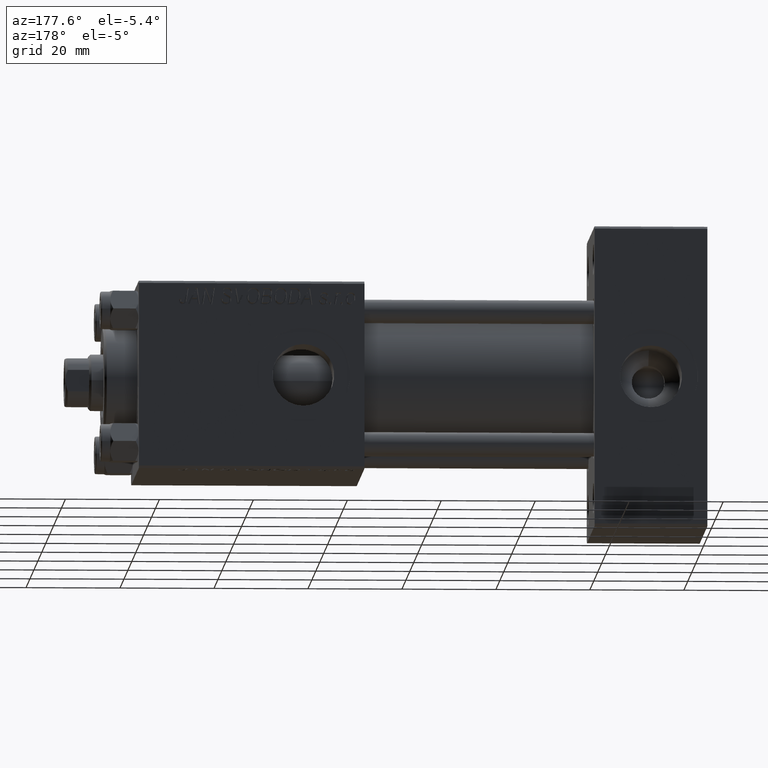
[diagram: clean part render]
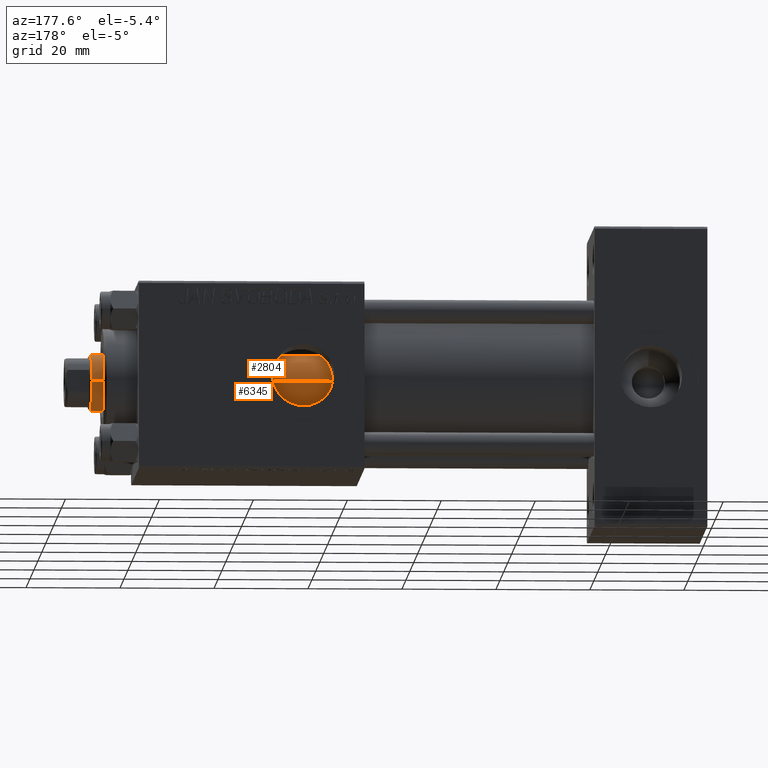
[diagram: same view with one multi-face feature highlighted, each face labeled with its STEP entity id]
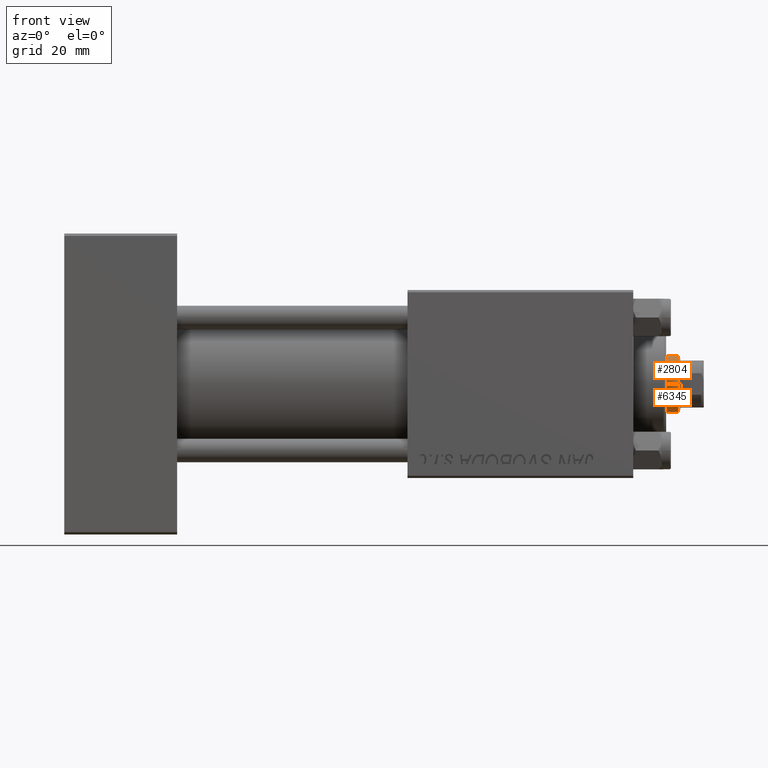
[diagram: same view with one multi-face feature highlighted, each face labeled with its STEP entity id]
A machine part, auxiliary view. The highlighted faces form ONE feature: a constant-radius fillet chain: 2 tangent blend faces with common blend radius 6 mm. The faces share edges in the B-rep.
A second angle (front view) of the same feature is appended — it is thin or edge-on in the first view.
Their STEP definitions:
[1] entity #2804 (Cylinder):
#263 = AXIS2_PLACEMENT_3D ( 'NONE', #15756, #42974, #11207 ) ;
#416 = DIRECTION ( 'NONE',  ( -0.000000000000000000, -0.000000000000000000, -1.000000000000000000 ) ) ;
#2804 = ADVANCED_FACE ( 'NONE', ( #10723 ), #18781, .T. ) ;
#3397 = LINE ( 'NONE', #45298, #34328 ) ;
#6127 = EDGE_CURVE ( 'NONE', #41073, #44975, #12307, .T. ) ;
#7162 = DIRECTION ( 'NONE',  ( -0.000000000000000000, -0.000000000000000000, -1.000000000000000000 ) ) ;
#7892 = CARTESIAN_POINT ( 'NONE',  ( 6.000000000000000888, 7.347880794884120722E-16, 106.5000000000000000 ) ) ;
#10598 = CARTESIAN_POINT ( 'NONE',  ( 0.000000000000000000, 0.000000000000000000, 106.5000000000000000 ) ) ;
#10701 = EDGE_LOOP ( 'NONE', ( #46670, #15062, #28430, #42965 ) ) ;
#10723 = FACE_OUTER_BOUND ( 'NONE', #10701, .T. ) ;
#11207 = DIRECTION ( 'NONE',  ( 1.000000000000000000, 0.000000000000000000, 0.000000000000000000 ) ) ;
#12307 = LINE ( 'NONE', #23406, #25158 ) ;
#12318 = CARTESIAN_POINT ( 'NONE',  ( 6.000000000000000888, 7.347880794884120722E-16, 27.00000000000000000 ) ) ;
#13524 = VERTEX_POINT ( 'NONE', #7892 ) ;
#15062 = ORIENTED_EDGE ( 'NONE', *, *, #19077, .T. ) ;
#15756 = CARTESIAN_POINT ( 'NONE',  ( 0.000000000000000000, 0.000000000000000000, 27.00000000000000000 ) ) ;
#16503 = EDGE_CURVE ( 'NONE', #13524, #30826, #3397, .T. ) ;
#18781 = CYLINDRICAL_SURFACE ( 'NONE', #35446, 6.000000000000000888 ) ;
#19077 = EDGE_CURVE ( 'NONE', #13524, #41073, #27968, .T. ) ;
#21547 = AXIS2_PLACEMENT_3D ( 'NONE', #10598, #48686, #37313 ) ;
#23406 = CARTESIAN_POINT ( 'NONE',  ( -6.000000000000000888, 0.000000000000000000, 107.0000000000000000 ) ) ;
#25158 = VECTOR ( 'NONE', #416, 1000.000000000000000 ) ;
#26099 = DIRECTION ( 'NONE',  ( -1.000000000000000000, 0.000000000000000000, 0.000000000000000000 ) ) ;
#27968 = CIRCLE ( 'NONE', #21547, 6.000000000000000888 ) ;
#28430 = ORIENTED_EDGE ( 'NONE', *, *, #6127, .T. ) ;
#30826 = VERTEX_POINT ( 'NONE', #12318 ) ;
#34161 = CARTESIAN_POINT ( 'NONE',  ( 0.000000000000000000, 0.000000000000000000, 107.0000000000000000 ) ) ;
#34328 = VECTOR ( 'NONE', #42005, 1000.000000000000000 ) ;
#35446 = AXIS2_PLACEMENT_3D ( 'NONE', #34161, #7162, #26099 ) ;
#37313 = DIRECTION ( 'NONE',  ( 1.000000000000000000, 0.000000000000000000, 0.000000000000000000 ) ) ;
#38110 = CIRCLE ( 'NONE', #263, 6.000000000000000888 ) ;
#41073 = VERTEX_POINT ( 'NONE', #44527 ) ;
#42005 = DIRECTION ( 'NONE',  ( -0.000000000000000000, -0.000000000000000000, -1.000000000000000000 ) ) ;
#42965 = ORIENTED_EDGE ( 'NONE', *, *, #46352, .T. ) ;
#42974 = DIRECTION ( 'NONE',  ( 0.000000000000000000, 0.000000000000000000, 1.000000000000000000 ) ) ;
#44527 = CARTESIAN_POINT ( 'NONE',  ( -6.000000000000000888, 0.000000000000000000, 106.5000000000000000 ) ) ;
#44975 = VERTEX_POINT ( 'NONE', #49171 ) ;
#45298 = CARTESIAN_POINT ( 'NONE',  ( 6.000000000000000888, 7.347880794884120722E-16, 107.0000000000000000 ) ) ;
#46352 = EDGE_CURVE ( 'NONE', #44975, #30826, #38110, .T. ) ;
#46670 = ORIENTED_EDGE ( 'NONE', *, *, #16503, .F. ) ;
#48686 = DIRECTION ( 'NONE',  ( 0.000000000000000000, 0.000000000000000000, -1.000000000000000000 ) ) ;
#49171 = CARTESIAN_POINT ( 'NONE',  ( -6.000000000000000888, 0.000000000000000000, 27.00000000000000000 ) ) ;
[2] entity #6345 (Cylinder):
#416 = DIRECTION ( 'NONE',  ( -0.000000000000000000, -0.000000000000000000, -1.000000000000000000 ) ) ;
#1844 = DIRECTION ( 'NONE',  ( 0.000000000000000000, 0.000000000000000000, -1.000000000000000000 ) ) ;
#3135 = FACE_OUTER_BOUND ( 'NONE', #34066, .T. ) ;
#3397 = LINE ( 'NONE', #45298, #34328 ) ;
#4011 = DIRECTION ( 'NONE',  ( 0.000000000000000000, 0.000000000000000000, 1.000000000000000000 ) ) ;
#6127 = EDGE_CURVE ( 'NONE', #41073, #44975, #12307, .T. ) ;
#6345 = ADVANCED_FACE ( 'NONE', ( #3135 ), #14788, .T. ) ;
#7892 = CARTESIAN_POINT ( 'NONE',  ( 6.000000000000000888, 7.347880794884120722E-16, 106.5000000000000000 ) ) ;
#11345 = ORIENTED_EDGE ( 'NONE', *, *, #29943, .T. ) ;
#12307 = LINE ( 'NONE', #23406, #25158 ) ;
#12318 = CARTESIAN_POINT ( 'NONE',  ( 6.000000000000000888, 7.347880794884120722E-16, 27.00000000000000000 ) ) ;
#13524 = VERTEX_POINT ( 'NONE', #7892 ) ;
#14788 = CYLINDRICAL_SURFACE ( 'NONE', #46900, 6.000000000000000888 ) ;
#16503 = EDGE_CURVE ( 'NONE', #13524, #30826, #3397, .T. ) ;
#18546 = CIRCLE ( 'NONE', #28204, 6.000000000000000888 ) ;
#19873 = ORIENTED_EDGE ( 'NONE', *, *, #29087, .T. ) ;
#21899 = ORIENTED_EDGE ( 'NONE', *, *, #16503, .T. ) ;
#22848 = DIRECTION ( 'NONE',  ( -0.000000000000000000, -0.000000000000000000, -1.000000000000000000 ) ) ;
#23406 = CARTESIAN_POINT ( 'NONE',  ( -6.000000000000000888, 0.000000000000000000, 107.0000000000000000 ) ) ;
#23461 = CARTESIAN_POINT ( 'NONE',  ( 0.000000000000000000, 0.000000000000000000, 27.00000000000000000 ) ) ;
#25158 = VECTOR ( 'NONE', #416, 1000.000000000000000 ) ;
#28167 = AXIS2_PLACEMENT_3D ( 'NONE', #36403, #1844, #35671 ) ;
#28204 = AXIS2_PLACEMENT_3D ( 'NONE', #23461, #4011, #35049 ) ;
#29087 = EDGE_CURVE ( 'NONE', #41073, #13524, #49921, .T. ) ;
#29943 = EDGE_CURVE ( 'NONE', #30826, #44975, #18546, .T. ) ;
#30826 = VERTEX_POINT ( 'NONE', #12318 ) ;
#34066 = EDGE_LOOP ( 'NONE', ( #19873, #21899, #11345, #47225 ) ) ;
#34328 = VECTOR ( 'NONE', #42005, 1000.000000000000000 ) ;
#35049 = DIRECTION ( 'NONE',  ( 1.000000000000000000, 0.000000000000000000, 0.000000000000000000 ) ) ;
#35671 = DIRECTION ( 'NONE',  ( 1.000000000000000000, 0.000000000000000000, 0.000000000000000000 ) ) ;
#36403 = CARTESIAN_POINT ( 'NONE',  ( 0.000000000000000000, 0.000000000000000000, 106.5000000000000000 ) ) ;
#41073 = VERTEX_POINT ( 'NONE', #44527 ) ;
#41254 = CARTESIAN_POINT ( 'NONE',  ( 0.000000000000000000, 0.000000000000000000, 107.0000000000000000 ) ) ;
#42005 = DIRECTION ( 'NONE',  ( -0.000000000000000000, -0.000000000000000000, -1.000000000000000000 ) ) ;
#44527 = CARTESIAN_POINT ( 'NONE',  ( -6.000000000000000888, 0.000000000000000000, 106.5000000000000000 ) ) ;
#44975 = VERTEX_POINT ( 'NONE', #49171 ) ;
#45298 = CARTESIAN_POINT ( 'NONE',  ( 6.000000000000000888, 7.347880794884120722E-16, 107.0000000000000000 ) ) ;
#46900 = AXIS2_PLACEMENT_3D ( 'NONE', #41254, #22848, #49324 ) ;
#47225 = ORIENTED_EDGE ( 'NONE', *, *, #6127, .F. ) ;
#49171 = CARTESIAN_POINT ( 'NONE',  ( -6.000000000000000888, 0.000000000000000000, 27.00000000000000000 ) ) ;
#49324 = DIRECTION ( 'NONE',  ( -1.000000000000000000, 0.000000000000000000, 0.000000000000000000 ) ) ;
#49921 = CIRCLE ( 'NONE', #28167, 6.000000000000000888 ) ;